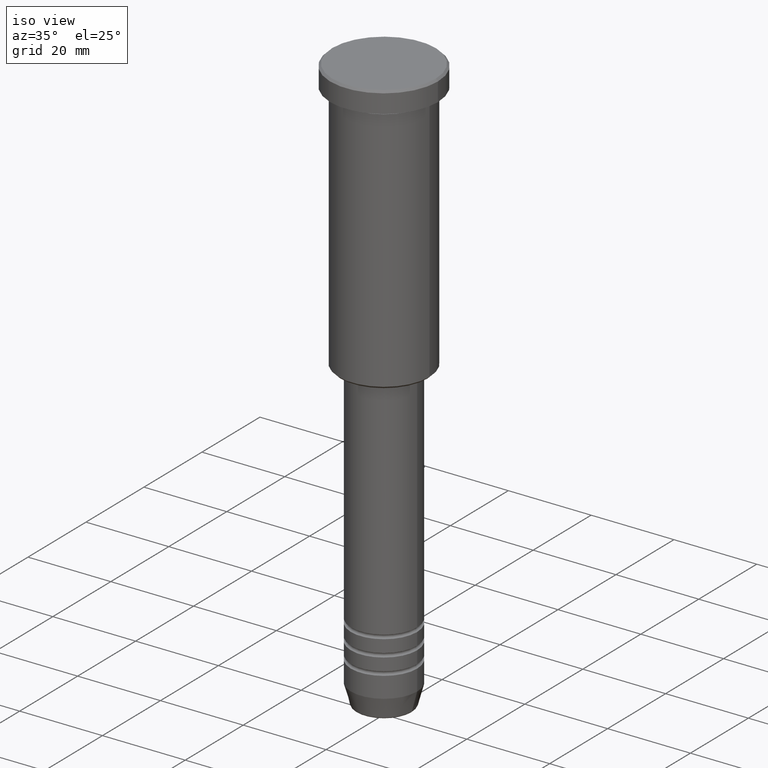
[diagram: clean part render]
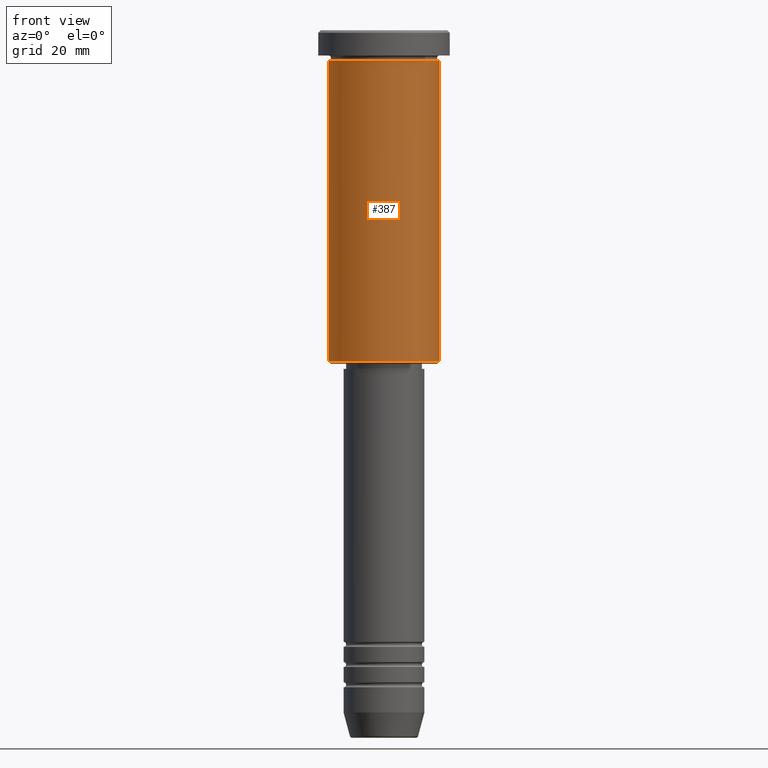
[diagram: tour spotlight — one face highlighted and labeled with its STEP entity id]
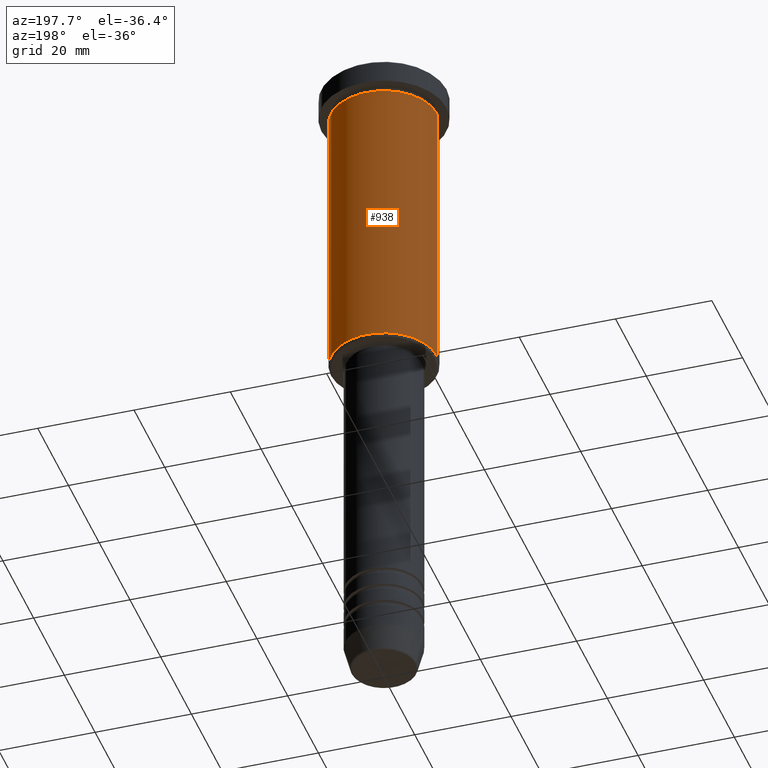
[diagram: tour spotlight — one face highlighted and labeled with its STEP entity id]
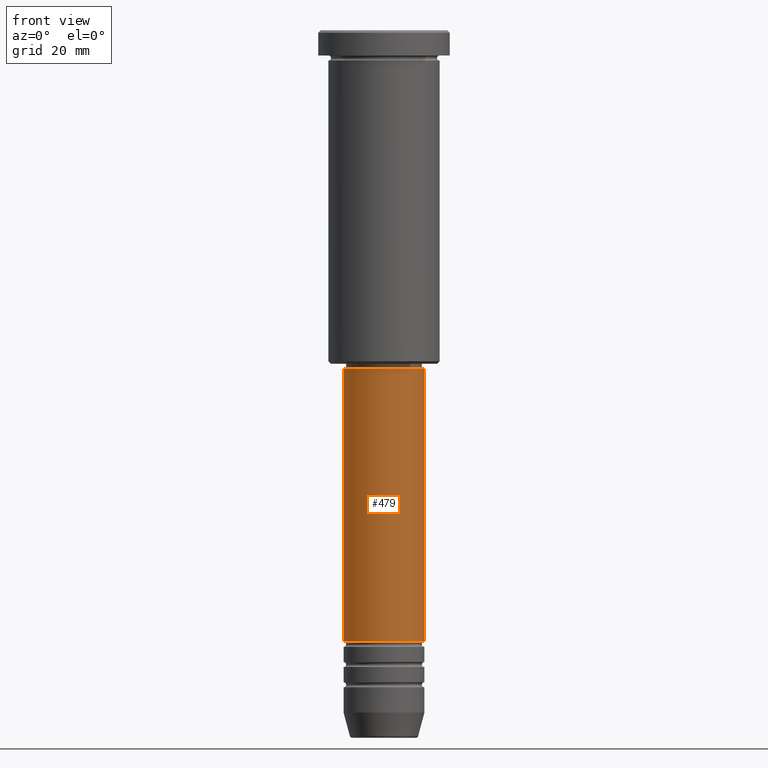
[diagram: tour spotlight — one face highlighted and labeled with its STEP entity id]
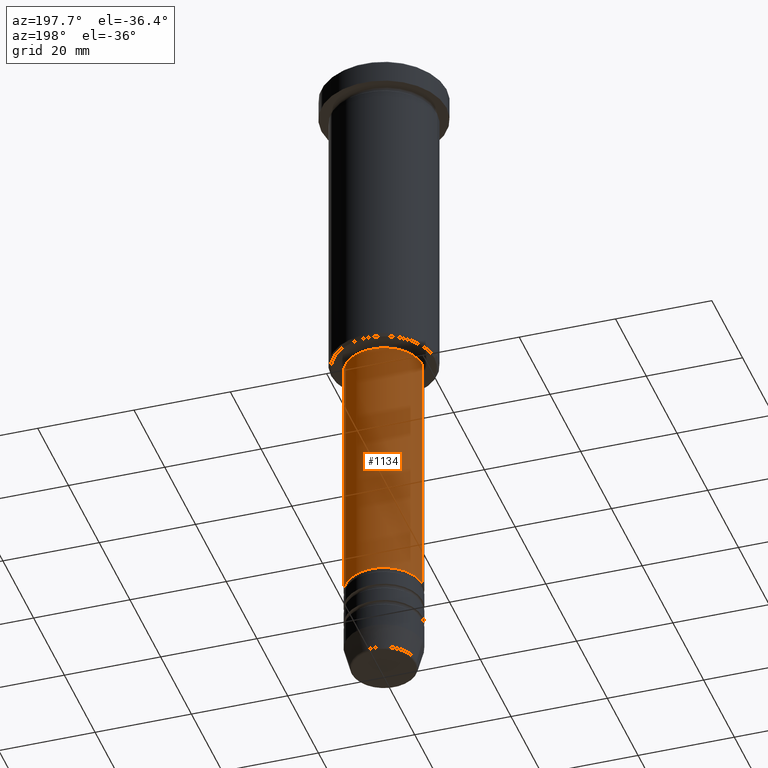
[diagram: tour spotlight — one face highlighted and labeled with its STEP entity id]
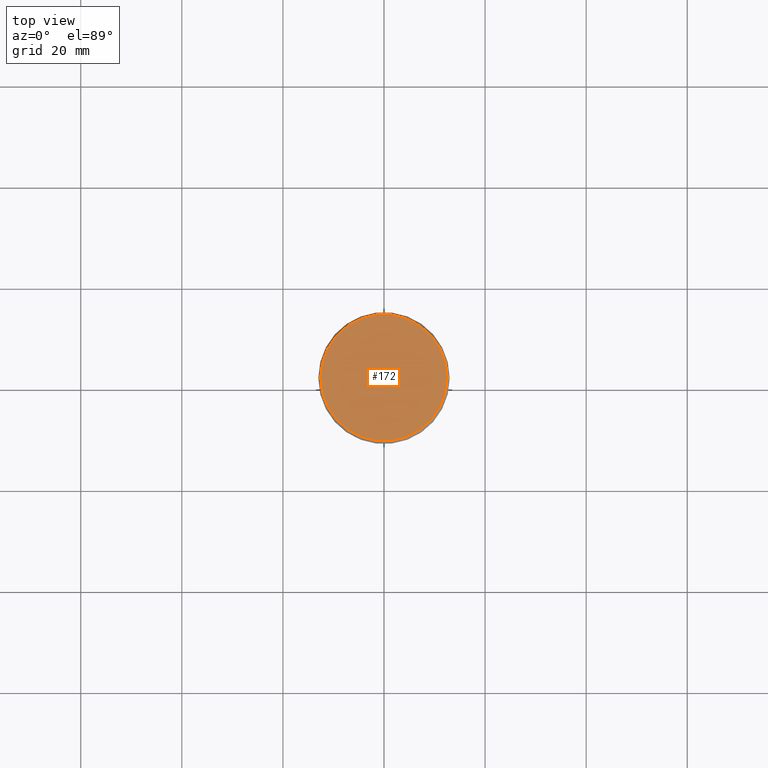
[diagram: tour spotlight — one face highlighted and labeled with its STEP entity id]
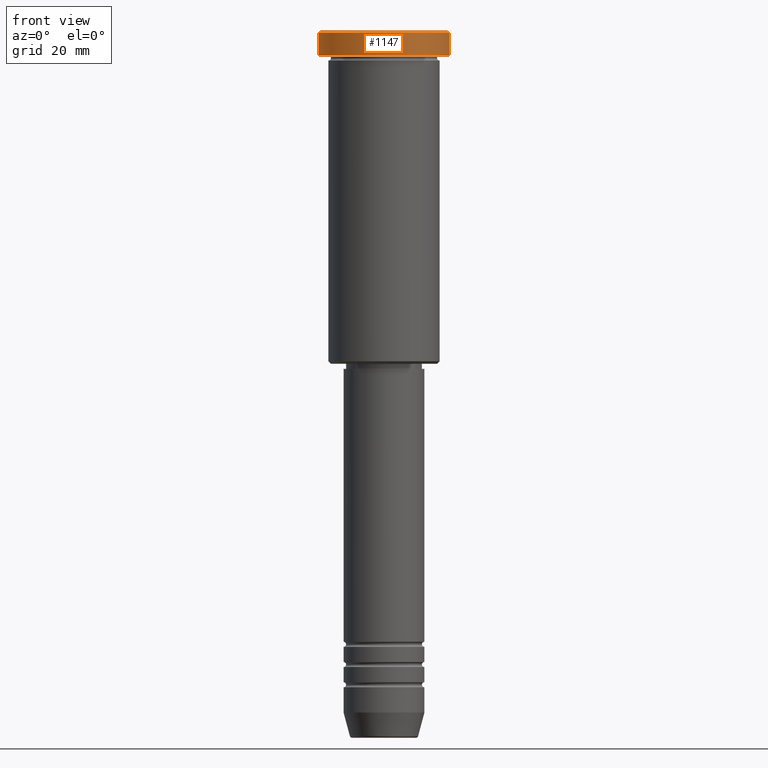
[diagram: tour spotlight — one face highlighted and labeled with its STEP entity id]
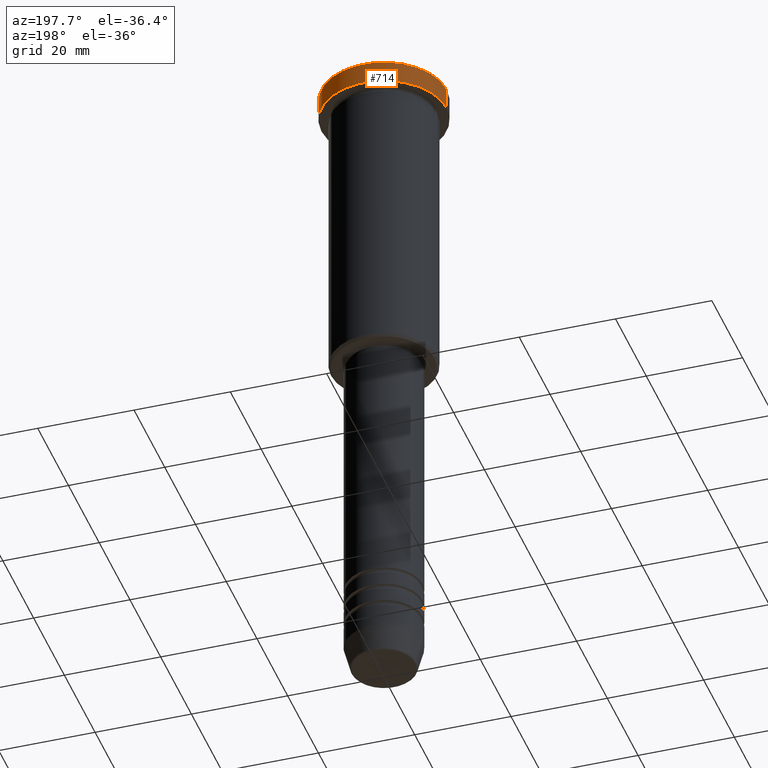
[diagram: tour spotlight — one face highlighted and labeled with its STEP entity id]
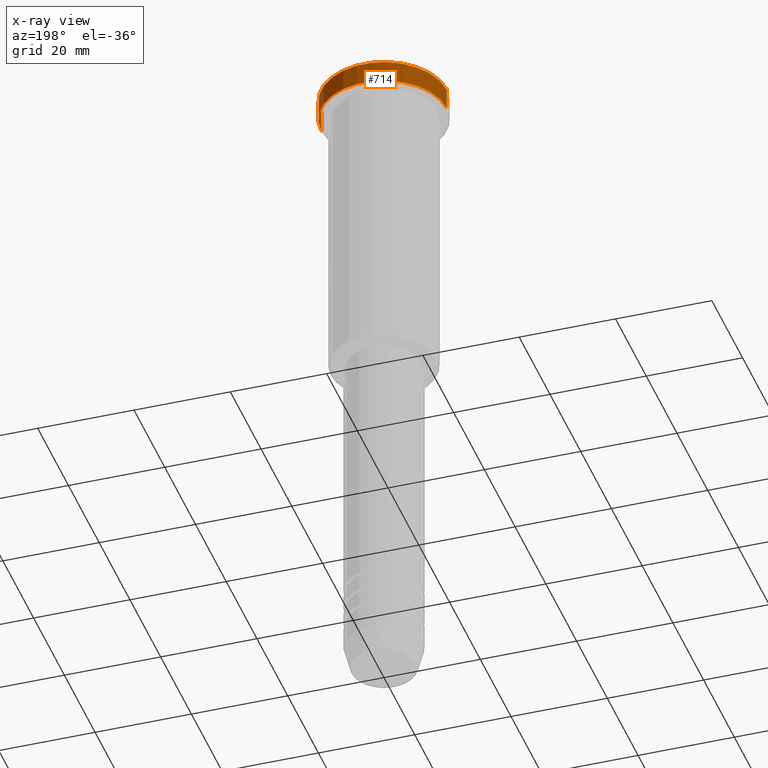
[diagram: x-ray of the same camera — body ghosted, this tour face saturated]
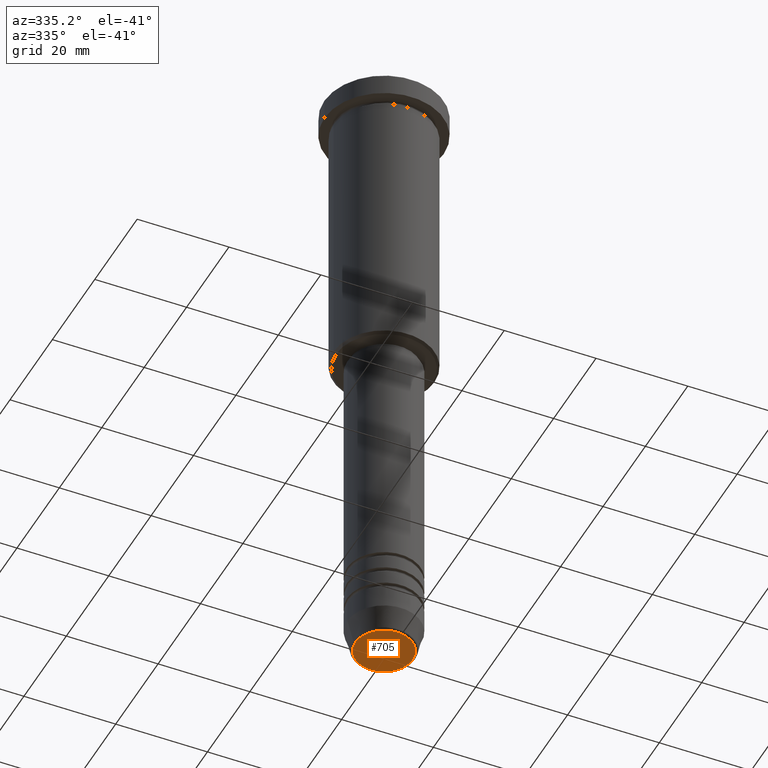
[diagram: tour spotlight — one face highlighted and labeled with its STEP entity id]
A machine part: a face-by-face anatomy tour. The part has 43 B-rep faces; the first image is the clean iso view, then the 8 largest visible faces are spotlighted one at a time (largest first), each with its STEP entity span.

Face 1 — front view, entity #387. In plain terms, the highlighted cylindrical surface (partial cylindrical patch) has radius 11 mm, axis along (-0, -0, 1).
Definition (entity closure, byte-faithful):
#33 = DIRECTION ( 'NONE',  ( -0.000000000000000000, -0.000000000000000000, 1.000000000000000000 ) ) ;
#97 = VECTOR ( 'NONE', #308, 1000.000000000000000 ) ;
#117 = CARTESIAN_POINT ( 'NONE',  ( 0.000000000000000000, 0.000000000000000000, 0.000000000000000000 ) ) ;
#128 = EDGE_CURVE ( 'NONE', #395, #780, #1127, .T. ) ;
#157 = AXIS2_PLACEMENT_3D ( 'NONE', #841, #597, #757 ) ;
#211 = EDGE_CURVE ( 'NONE', #395, #708, #285, .T. ) ;
#213 = CARTESIAN_POINT ( 'NONE',  ( -11.00000000000000000, 1.347111479062088405E-15, 0.000000000000000000 ) ) ;
#225 = EDGE_LOOP ( 'NONE', ( #1111, #803, #487, #1024 ) ) ;
#226 = DIRECTION ( 'NONE',  ( -0.000000000000000000, -0.000000000000000000, 1.000000000000000000 ) ) ;
#228 = CARTESIAN_POINT ( 'NONE',  ( -11.00000000000000000, 1.347111479062088405E-15, -65.49999999999994316 ) ) ;
#264 = CARTESIAN_POINT ( 'NONE',  ( 11.00000000000000000, 0.000000000000000000, -5.999999999999999112 ) ) ;
#285 = LINE ( 'NONE', #213, #97 ) ;
#308 = DIRECTION ( 'NONE',  ( -0.000000000000000000, -0.000000000000000000, 1.000000000000000000 ) ) ;
#309 = VERTEX_POINT ( 'NONE', #264 ) ;
#373 = CARTESIAN_POINT ( 'NONE',  ( -11.00000000000000000, 1.347111479062088405E-15, -5.999999999999999112 ) ) ;
#379 = CARTESIAN_POINT ( 'NONE',  ( 0.000000000000000000, 0.000000000000000000, -65.49999999999994316 ) ) ;
#387 = ADVANCED_FACE ( 'NONE', ( #944 ), #842, .T. ) ;
#388 = DIRECTION ( 'NONE',  ( 1.000000000000000000, 0.000000000000000000, 0.000000000000000000 ) ) ;
#395 = VERTEX_POINT ( 'NONE', #228 ) ;
#409 = CARTESIAN_POINT ( 'NONE',  ( 11.00000000000000000, 0.000000000000000000, -65.49999999999994316 ) ) ;
#477 = DIRECTION ( 'NONE',  ( -1.000000000000000000, 0.000000000000000000, 0.000000000000000000 ) ) ;
#487 = ORIENTED_EDGE ( 'NONE', *, *, #1164, .T. ) ;
#556 = CIRCLE ( 'NONE', #157, 11.00000000000000000 ) ;
#597 = DIRECTION ( 'NONE',  ( -0.000000000000000000, -0.000000000000000000, 1.000000000000000000 ) ) ;
#607 = CARTESIAN_POINT ( 'NONE',  ( 11.00000000000000000, 0.000000000000000000, 0.000000000000000000 ) ) ;
#708 = VERTEX_POINT ( 'NONE', #373 ) ;
#745 = DIRECTION ( 'NONE',  ( -0.000000000000000000, -0.000000000000000000, 1.000000000000000000 ) ) ;
#757 = DIRECTION ( 'NONE',  ( 1.000000000000000000, 0.000000000000000000, 0.000000000000000000 ) ) ;
#780 = VERTEX_POINT ( 'NONE', #409 ) ;
#803 = ORIENTED_EDGE ( 'NONE', *, *, #128, .T. ) ;
#841 = CARTESIAN_POINT ( 'NONE',  ( 0.000000000000000000, 0.000000000000000000, -5.999999999999999112 ) ) ;
#842 = CYLINDRICAL_SURFACE ( 'NONE', #869, 11.00000000000000000 ) ;
#869 = AXIS2_PLACEMENT_3D ( 'NONE', #117, #33, #388 ) ;
#944 = FACE_OUTER_BOUND ( 'NONE', #225, .T. ) ;
#976 = EDGE_CURVE ( 'NONE', #708, #309, #556, .T. ) ;
#999 = AXIS2_PLACEMENT_3D ( 'NONE', #379, #745, #477 ) ;
#1018 = VECTOR ( 'NONE', #226, 1000.000000000000000 ) ;
#1024 = ORIENTED_EDGE ( 'NONE', *, *, #976, .F. ) ;
#1051 = LINE ( 'NONE', #607, #1018 ) ;
#1111 = ORIENTED_EDGE ( 'NONE', *, *, #211, .F. ) ;
#1127 = CIRCLE ( 'NONE', #999, 11.00000000000000000 ) ;
#1164 = EDGE_CURVE ( 'NONE', #780, #309, #1051, .T. ) ;

Face 2 — auxiliary view, entity #938. In plain terms, the highlighted cylindrical surface (partial cylindrical patch) has radius 11 mm, axis along (-0, -0, 1).
Definition (entity closure, byte-faithful):
#24 = DIRECTION ( 'NONE',  ( -0.000000000000000000, -0.000000000000000000, 1.000000000000000000 ) ) ;
#26 = ORIENTED_EDGE ( 'NONE', *, *, #1164, .F. ) ;
#97 = VECTOR ( 'NONE', #308, 1000.000000000000000 ) ;
#111 = DIRECTION ( 'NONE',  ( -0.000000000000000000, -0.000000000000000000, 1.000000000000000000 ) ) ;
#130 = CARTESIAN_POINT ( 'NONE',  ( 0.000000000000000000, 0.000000000000000000, -65.49999999999994316 ) ) ;
#138 = ORIENTED_EDGE ( 'NONE', *, *, #508, .T. ) ;
#151 = EDGE_LOOP ( 'NONE', ( #138, #697, #542, #26 ) ) ;
#211 = EDGE_CURVE ( 'NONE', #395, #708, #285, .T. ) ;
#213 = CARTESIAN_POINT ( 'NONE',  ( -11.00000000000000000, 1.347111479062088405E-15, 0.000000000000000000 ) ) ;
#223 = DIRECTION ( 'NONE',  ( 1.000000000000000000, 0.000000000000000000, 0.000000000000000000 ) ) ;
#226 = DIRECTION ( 'NONE',  ( -0.000000000000000000, -0.000000000000000000, 1.000000000000000000 ) ) ;
#228 = CARTESIAN_POINT ( 'NONE',  ( -11.00000000000000000, 1.347111479062088405E-15, -65.49999999999994316 ) ) ;
#264 = CARTESIAN_POINT ( 'NONE',  ( 11.00000000000000000, 0.000000000000000000, -5.999999999999999112 ) ) ;
#285 = LINE ( 'NONE', #213, #97 ) ;
#308 = DIRECTION ( 'NONE',  ( -0.000000000000000000, -0.000000000000000000, 1.000000000000000000 ) ) ;
#309 = VERTEX_POINT ( 'NONE', #264 ) ;
#373 = CARTESIAN_POINT ( 'NONE',  ( -11.00000000000000000, 1.347111479062088405E-15, -5.999999999999999112 ) ) ;
#390 = DIRECTION ( 'NONE',  ( -1.000000000000000000, 0.000000000000000000, 0.000000000000000000 ) ) ;
#395 = VERTEX_POINT ( 'NONE', #228 ) ;
#409 = CARTESIAN_POINT ( 'NONE',  ( 11.00000000000000000, 0.000000000000000000, -65.49999999999994316 ) ) ;
#422 = AXIS2_PLACEMENT_3D ( 'NONE', #662, #111, #223 ) ;
#453 = EDGE_CURVE ( 'NONE', #309, #708, #929, .T. ) ;
#504 = DIRECTION ( 'NONE',  ( -0.000000000000000000, -0.000000000000000000, 1.000000000000000000 ) ) ;
#508 = EDGE_CURVE ( 'NONE', #780, #395, #741, .T. ) ;
#518 = AXIS2_PLACEMENT_3D ( 'NONE', #130, #24, #390 ) ;
#542 = ORIENTED_EDGE ( 'NONE', *, *, #453, .F. ) ;
#607 = CARTESIAN_POINT ( 'NONE',  ( 11.00000000000000000, 0.000000000000000000, 0.000000000000000000 ) ) ;
#662 = CARTESIAN_POINT ( 'NONE',  ( 0.000000000000000000, 0.000000000000000000, -5.999999999999999112 ) ) ;
#697 = ORIENTED_EDGE ( 'NONE', *, *, #211, .T. ) ;
#699 = CYLINDRICAL_SURFACE ( 'NONE', #1072, 11.00000000000000000 ) ;
#708 = VERTEX_POINT ( 'NONE', #373 ) ;
#741 = CIRCLE ( 'NONE', #518, 11.00000000000000000 ) ;
#780 = VERTEX_POINT ( 'NONE', #409 ) ;
#897 = DIRECTION ( 'NONE',  ( 1.000000000000000000, 0.000000000000000000, 0.000000000000000000 ) ) ;
#929 = CIRCLE ( 'NONE', #422, 11.00000000000000000 ) ;
#938 = ADVANCED_FACE ( 'NONE', ( #1117 ), #699, .T. ) ;
#1018 = VECTOR ( 'NONE', #226, 1000.000000000000000 ) ;
#1051 = LINE ( 'NONE', #607, #1018 ) ;
#1053 = CARTESIAN_POINT ( 'NONE',  ( 0.000000000000000000, 0.000000000000000000, 0.000000000000000000 ) ) ;
#1072 = AXIS2_PLACEMENT_3D ( 'NONE', #1053, #504, #897 ) ;
#1117 = FACE_OUTER_BOUND ( 'NONE', #151, .T. ) ;
#1164 = EDGE_CURVE ( 'NONE', #780, #309, #1051, .T. ) ;

Face 3 — front view, entity #479. In plain terms, the highlighted cylindrical surface (partial cylindrical patch) has radius 8 mm, axis along (-0, -0, 1).
Definition (entity closure, byte-faithful):
#25 = AXIS2_PLACEMENT_3D ( 'NONE', #168, #736, #540 ) ;
#135 = DIRECTION ( 'NONE',  ( -0.000000000000000000, -0.000000000000000000, 1.000000000000000000 ) ) ;
#149 = ORIENTED_EDGE ( 'NONE', *, *, #850, .F. ) ;
#168 = CARTESIAN_POINT ( 'NONE',  ( 0.000000000000000000, 0.000000000000000000, -67.00000000000002842 ) ) ;
#189 = EDGE_LOOP ( 'NONE', ( #149, #435, #997, #220 ) ) ;
#220 = ORIENTED_EDGE ( 'NONE', *, *, #548, .F. ) ;
#222 = CARTESIAN_POINT ( 'NONE',  ( 8.000000000000000000, 0.000000000000000000, 0.000000000000000000 ) ) ;
#230 = EDGE_CURVE ( 'NONE', #743, #520, #776, .T. ) ;
#423 = LINE ( 'NONE', #903, #778 ) ;
#435 = ORIENTED_EDGE ( 'NONE', *, *, #230, .T. ) ;
#446 = CARTESIAN_POINT ( 'NONE',  ( -8.000000000000000000, 9.797174393178825657E-16, -121.0000000000000000 ) ) ;
#448 = CARTESIAN_POINT ( 'NONE',  ( -8.000000000000000000, 9.797174393178825657E-16, -67.00000000000002842 ) ) ;
#479 = ADVANCED_FACE ( 'NONE', ( #594 ), #860, .T. ) ;
#495 = DIRECTION ( 'NONE',  ( -0.000000000000000000, -0.000000000000000000, 1.000000000000000000 ) ) ;
#520 = VERTEX_POINT ( 'NONE', #945 ) ;
#537 = CIRCLE ( 'NONE', #25, 8.000000000000000000 ) ;
#540 = DIRECTION ( 'NONE',  ( 1.000000000000000000, 0.000000000000000000, 0.000000000000000000 ) ) ;
#548 = EDGE_CURVE ( 'NONE', #916, #631, #537, .T. ) ;
#559 = AXIS2_PLACEMENT_3D ( 'NONE', #864, #779, #1125 ) ;
#569 = CARTESIAN_POINT ( 'NONE',  ( 8.000000000000000000, 0.000000000000000000, -67.00000000000002842 ) ) ;
#580 = AXIS2_PLACEMENT_3D ( 'NONE', #865, #957, #707 ) ;
#594 = FACE_OUTER_BOUND ( 'NONE', #189, .T. ) ;
#631 = VERTEX_POINT ( 'NONE', #569 ) ;
#642 = EDGE_CURVE ( 'NONE', #520, #631, #686, .T. ) ;
#686 = LINE ( 'NONE', #222, #1152 ) ;
#707 = DIRECTION ( 'NONE',  ( 1.000000000000000000, 0.000000000000000000, 0.000000000000000000 ) ) ;
#736 = DIRECTION ( 'NONE',  ( -0.000000000000000000, -0.000000000000000000, 1.000000000000000000 ) ) ;
#743 = VERTEX_POINT ( 'NONE', #446 ) ;
#776 = CIRCLE ( 'NONE', #580, 8.000000000000000000 ) ;
#778 = VECTOR ( 'NONE', #135, 1000.000000000000000 ) ;
#779 = DIRECTION ( 'NONE',  ( -0.000000000000000000, -0.000000000000000000, 1.000000000000000000 ) ) ;
#850 = EDGE_CURVE ( 'NONE', #743, #916, #423, .T. ) ;
#860 = CYLINDRICAL_SURFACE ( 'NONE', #559, 8.000000000000000000 ) ;
#864 = CARTESIAN_POINT ( 'NONE',  ( 0.000000000000000000, 0.000000000000000000, 0.000000000000000000 ) ) ;
#865 = CARTESIAN_POINT ( 'NONE',  ( 0.000000000000000000, 0.000000000000000000, -121.0000000000000000 ) ) ;
#903 = CARTESIAN_POINT ( 'NONE',  ( -8.000000000000000000, 9.797174393178825657E-16, 0.000000000000000000 ) ) ;
#916 = VERTEX_POINT ( 'NONE', #448 ) ;
#945 = CARTESIAN_POINT ( 'NONE',  ( 8.000000000000000000, 0.000000000000000000, -121.0000000000000000 ) ) ;
#957 = DIRECTION ( 'NONE',  ( -0.000000000000000000, -0.000000000000000000, 1.000000000000000000 ) ) ;
#997 = ORIENTED_EDGE ( 'NONE', *, *, #642, .T. ) ;
#1125 = DIRECTION ( 'NONE',  ( 1.000000000000000000, 0.000000000000000000, 0.000000000000000000 ) ) ;
#1152 = VECTOR ( 'NONE', #495, 1000.000000000000000 ) ;

Face 4 — auxiliary view, entity #1134. In plain terms, the highlighted cylindrical surface (partial cylindrical patch) has radius 8 mm, axis along (-0, -0, 1).
Definition (entity closure, byte-faithful):
#16 = CYLINDRICAL_SURFACE ( 'NONE', #701, 8.000000000000000000 ) ;
#135 = DIRECTION ( 'NONE',  ( -0.000000000000000000, -0.000000000000000000, 1.000000000000000000 ) ) ;
#145 = AXIS2_PLACEMENT_3D ( 'NONE', #1052, #602, #852 ) ;
#165 = EDGE_LOOP ( 'NONE', ( #503, #370, #725, #201 ) ) ;
#201 = ORIENTED_EDGE ( 'NONE', *, *, #642, .F. ) ;
#206 = FACE_OUTER_BOUND ( 'NONE', #165, .T. ) ;
#222 = CARTESIAN_POINT ( 'NONE',  ( 8.000000000000000000, 0.000000000000000000, 0.000000000000000000 ) ) ;
#224 = DIRECTION ( 'NONE',  ( 1.000000000000000000, 0.000000000000000000, 0.000000000000000000 ) ) ;
#247 = EDGE_CURVE ( 'NONE', #520, #743, #806, .T. ) ;
#370 = ORIENTED_EDGE ( 'NONE', *, *, #850, .T. ) ;
#423 = LINE ( 'NONE', #903, #778 ) ;
#446 = CARTESIAN_POINT ( 'NONE',  ( -8.000000000000000000, 9.797174393178825657E-16, -121.0000000000000000 ) ) ;
#448 = CARTESIAN_POINT ( 'NONE',  ( -8.000000000000000000, 9.797174393178825657E-16, -67.00000000000002842 ) ) ;
#495 = DIRECTION ( 'NONE',  ( -0.000000000000000000, -0.000000000000000000, 1.000000000000000000 ) ) ;
#502 = DIRECTION ( 'NONE',  ( 1.000000000000000000, 0.000000000000000000, 0.000000000000000000 ) ) ;
#503 = ORIENTED_EDGE ( 'NONE', *, *, #247, .T. ) ;
#520 = VERTEX_POINT ( 'NONE', #945 ) ;
#569 = CARTESIAN_POINT ( 'NONE',  ( 8.000000000000000000, 0.000000000000000000, -67.00000000000002842 ) ) ;
#584 = DIRECTION ( 'NONE',  ( -0.000000000000000000, -0.000000000000000000, 1.000000000000000000 ) ) ;
#602 = DIRECTION ( 'NONE',  ( -0.000000000000000000, -0.000000000000000000, 1.000000000000000000 ) ) ;
#631 = VERTEX_POINT ( 'NONE', #569 ) ;
#642 = EDGE_CURVE ( 'NONE', #520, #631, #686, .T. ) ;
#686 = LINE ( 'NONE', #222, #1152 ) ;
#701 = AXIS2_PLACEMENT_3D ( 'NONE', #948, #956, #224 ) ;
#725 = ORIENTED_EDGE ( 'NONE', *, *, #874, .F. ) ;
#743 = VERTEX_POINT ( 'NONE', #446 ) ;
#778 = VECTOR ( 'NONE', #135, 1000.000000000000000 ) ;
#787 = AXIS2_PLACEMENT_3D ( 'NONE', #1154, #584, #502 ) ;
#806 = CIRCLE ( 'NONE', #787, 8.000000000000000000 ) ;
#850 = EDGE_CURVE ( 'NONE', #743, #916, #423, .T. ) ;
#852 = DIRECTION ( 'NONE',  ( 1.000000000000000000, 0.000000000000000000, 0.000000000000000000 ) ) ;
#874 = EDGE_CURVE ( 'NONE', #631, #916, #1003, .T. ) ;
#903 = CARTESIAN_POINT ( 'NONE',  ( -8.000000000000000000, 9.797174393178825657E-16, 0.000000000000000000 ) ) ;
#916 = VERTEX_POINT ( 'NONE', #448 ) ;
#945 = CARTESIAN_POINT ( 'NONE',  ( 8.000000000000000000, 0.000000000000000000, -121.0000000000000000 ) ) ;
#948 = CARTESIAN_POINT ( 'NONE',  ( 0.000000000000000000, 0.000000000000000000, 0.000000000000000000 ) ) ;
#956 = DIRECTION ( 'NONE',  ( -0.000000000000000000, -0.000000000000000000, 1.000000000000000000 ) ) ;
#1003 = CIRCLE ( 'NONE', #145, 8.000000000000000000 ) ;
#1052 = CARTESIAN_POINT ( 'NONE',  ( 0.000000000000000000, 0.000000000000000000, -67.00000000000002842 ) ) ;
#1134 = ADVANCED_FACE ( 'NONE', ( #206 ), #16, .T. ) ;
#1152 = VECTOR ( 'NONE', #495, 1000.000000000000000 ) ;
#1154 = CARTESIAN_POINT ( 'NONE',  ( 0.000000000000000000, 0.000000000000000000, -121.0000000000000000 ) ) ;

Face 5 — top view, entity #172. In plain terms, the highlighted planar face has unit normal (0, -0, 1).
Definition (entity closure, byte-faithful):
#27 = CIRCLE ( 'NONE', #463, 12.50000000000001066 ) ;
#67 = ORIENTED_EDGE ( 'NONE', *, *, #731, .T. ) ;
#172 = ADVANCED_FACE ( 'NONE', ( #665 ), #1027, .T. ) ;
#218 = CARTESIAN_POINT ( 'NONE',  ( 12.50000000000001066, 1.561424668912876097E-15, 0.000000000000000000 ) ) ;
#259 = CARTESIAN_POINT ( 'NONE',  ( -12.50000000000001066, 0.000000000000000000, 0.000000000000000000 ) ) ;
#272 = DIRECTION ( 'NONE',  ( 1.000000000000000000, 0.000000000000000000, 0.000000000000000000 ) ) ;
#317 = CARTESIAN_POINT ( 'NONE',  ( 0.000000000000000000, 0.000000000000000000, 0.000000000000000000 ) ) ;
#329 = DIRECTION ( 'NONE',  ( -0.000000000000000000, -0.000000000000000000, 1.000000000000000000 ) ) ;
#350 = CIRCLE ( 'NONE', #1022, 12.50000000000001066 ) ;
#376 = CARTESIAN_POINT ( 'NONE',  ( 0.000000000000000000, 0.000000000000000000, 0.000000000000000000 ) ) ;
#463 = AXIS2_PLACEMENT_3D ( 'NONE', #881, #329, #272 ) ;
#485 = DIRECTION ( 'NONE',  ( 0.000000000000000000, -0.000000000000000000, 1.000000000000000000 ) ) ;
#636 = AXIS2_PLACEMENT_3D ( 'NONE', #376, #485, #836 ) ;
#660 = EDGE_CURVE ( 'NONE', #919, #816, #350, .T. ) ;
#665 = FACE_OUTER_BOUND ( 'NONE', #690, .T. ) ;
#690 = EDGE_LOOP ( 'NONE', ( #67, #1071 ) ) ;
#719 = DIRECTION ( 'NONE',  ( 1.000000000000000000, 0.000000000000000000, 0.000000000000000000 ) ) ;
#731 = EDGE_CURVE ( 'NONE', #816, #919, #27, .T. ) ;
#816 = VERTEX_POINT ( 'NONE', #259 ) ;
#836 = DIRECTION ( 'NONE',  ( 1.000000000000000000, 0.000000000000000000, 0.000000000000000000 ) ) ;
#881 = CARTESIAN_POINT ( 'NONE',  ( 0.000000000000000000, 0.000000000000000000, 0.000000000000000000 ) ) ;
#919 = VERTEX_POINT ( 'NONE', #218 ) ;
#969 = DIRECTION ( 'NONE',  ( -0.000000000000000000, -0.000000000000000000, 1.000000000000000000 ) ) ;
#1022 = AXIS2_PLACEMENT_3D ( 'NONE', #317, #969, #719 ) ;
#1027 = PLANE ( 'NONE',  #636 ) ;
#1071 = ORIENTED_EDGE ( 'NONE', *, *, #660, .T. ) ;

Face 6 — front view, entity #1147. In plain terms, the highlighted cylindrical surface (partial cylindrical patch) has radius 13 mm, axis along (-0, -0, 1).
Definition (entity closure, byte-faithful):
#69 = CARTESIAN_POINT ( 'NONE',  ( 13.00000000000000000, 0.000000000000000000, 0.000000000000000000 ) ) ;
#106 = DIRECTION ( 'NONE',  ( 0.000000000000000000, 0.000000000000000000, -1.000000000000000000 ) ) ;
#136 = DIRECTION ( 'NONE',  ( 1.000000000000000000, 0.000000000000000000, 0.000000000000000000 ) ) ;
#173 = VERTEX_POINT ( 'NONE', #754 ) ;
#192 = DIRECTION ( 'NONE',  ( -0.000000000000000000, -0.000000000000000000, 1.000000000000000000 ) ) ;
#194 = CIRCLE ( 'NONE', #678, 13.00000000000000000 ) ;
#212 = EDGE_CURVE ( 'NONE', #173, #937, #551, .T. ) ;
#242 = DIRECTION ( 'NONE',  ( 1.000000000000000000, 0.000000000000000000, 0.000000000000000000 ) ) ;
#319 = DIRECTION ( 'NONE',  ( -0.000000000000000000, -0.000000000000000000, 1.000000000000000000 ) ) ;
#324 = CARTESIAN_POINT ( 'NONE',  ( -13.00000000000000000, 1.592040838891559095E-15, -0.4999999999999935052 ) ) ;
#333 = CARTESIAN_POINT ( 'NONE',  ( 0.000000000000000000, 0.000000000000000000, 0.000000000000000000 ) ) ;
#337 = CARTESIAN_POINT ( 'NONE',  ( 13.00000000000000000, 0.000000000000000000, -0.4999999999999935052 ) ) ;
#401 = DIRECTION ( 'NONE',  ( 1.000000000000000000, 0.000000000000000000, 0.000000000000000000 ) ) ;
#445 = DIRECTION ( 'NONE',  ( -0.000000000000000000, -0.000000000000000000, 1.000000000000000000 ) ) ;
#476 = ORIENTED_EDGE ( 'NONE', *, *, #212, .F. ) ;
#517 = VECTOR ( 'NONE', #192, 1000.000000000000000 ) ;
#551 = LINE ( 'NONE', #657, #517 ) ;
#583 = ORIENTED_EDGE ( 'NONE', *, *, #923, .T. ) ;
#592 = ORIENTED_EDGE ( 'NONE', *, *, #1116, .T. ) ;
#596 = CYLINDRICAL_SURFACE ( 'NONE', #775, 13.00000000000000000 ) ;
#635 = AXIS2_PLACEMENT_3D ( 'NONE', #946, #319, #136 ) ;
#657 = CARTESIAN_POINT ( 'NONE',  ( -13.00000000000000000, 1.592040838891559095E-15, 0.000000000000000000 ) ) ;
#678 = AXIS2_PLACEMENT_3D ( 'NONE', #954, #106, #401 ) ;
#726 = VERTEX_POINT ( 'NONE', #863 ) ;
#754 = CARTESIAN_POINT ( 'NONE',  ( -13.00000000000000000, 1.592040838891559095E-15, -5.000000000000000000 ) ) ;
#773 = FACE_OUTER_BOUND ( 'NONE', #1155, .T. ) ;
#775 = AXIS2_PLACEMENT_3D ( 'NONE', #333, #1064, #242 ) ;
#795 = EDGE_CURVE ( 'NONE', #726, #814, #989, .T. ) ;
#814 = VERTEX_POINT ( 'NONE', #337 ) ;
#863 = CARTESIAN_POINT ( 'NONE',  ( 13.00000000000000000, 0.000000000000000000, -5.000000000000000000 ) ) ;
#870 = VECTOR ( 'NONE', #445, 1000.000000000000000 ) ;
#923 = EDGE_CURVE ( 'NONE', #173, #726, #1133, .T. ) ;
#937 = VERTEX_POINT ( 'NONE', #324 ) ;
#946 = CARTESIAN_POINT ( 'NONE',  ( 0.000000000000000000, 0.000000000000000000, -5.000000000000000000 ) ) ;
#954 = CARTESIAN_POINT ( 'NONE',  ( 0.000000000000000000, 0.000000000000000000, -0.4999999999999935052 ) ) ;
#989 = LINE ( 'NONE', #69, #870 ) ;
#1064 = DIRECTION ( 'NONE',  ( -0.000000000000000000, -0.000000000000000000, 1.000000000000000000 ) ) ;
#1087 = ORIENTED_EDGE ( 'NONE', *, *, #795, .T. ) ;
#1116 = EDGE_CURVE ( 'NONE', #814, #937, #194, .T. ) ;
#1133 = CIRCLE ( 'NONE', #635, 13.00000000000000000 ) ;
#1147 = ADVANCED_FACE ( 'NONE', ( #773 ), #596, .T. ) ;
#1155 = EDGE_LOOP ( 'NONE', ( #476, #583, #1087, #592 ) ) ;

Face 7 — auxiliary view, entity #714. An x-ray twin of the same camera follows (body ghosted, this face saturated) — the face is partly hidden behind the body. In plain terms, the highlighted cylindrical surface (partial cylindrical patch) has radius 13 mm, axis along (-0, -0, 1).
Definition (entity closure, byte-faithful):
#8 = DIRECTION ( 'NONE',  ( 1.000000000000000000, 0.000000000000000000, 0.000000000000000000 ) ) ;
#69 = CARTESIAN_POINT ( 'NONE',  ( 13.00000000000000000, 0.000000000000000000, 0.000000000000000000 ) ) ;
#78 = AXIS2_PLACEMENT_3D ( 'NONE', #1153, #1041, #244 ) ;
#125 = EDGE_CURVE ( 'NONE', #726, #173, #459, .T. ) ;
#133 = FACE_OUTER_BOUND ( 'NONE', #934, .T. ) ;
#173 = VERTEX_POINT ( 'NONE', #754 ) ;
#174 = AXIS2_PLACEMENT_3D ( 'NONE', #792, #965, #412 ) ;
#192 = DIRECTION ( 'NONE',  ( -0.000000000000000000, -0.000000000000000000, 1.000000000000000000 ) ) ;
#210 = ORIENTED_EDGE ( 'NONE', *, *, #125, .T. ) ;
#212 = EDGE_CURVE ( 'NONE', #173, #937, #551, .T. ) ;
#244 = DIRECTION ( 'NONE',  ( 1.000000000000000000, 0.000000000000000000, 0.000000000000000000 ) ) ;
#324 = CARTESIAN_POINT ( 'NONE',  ( -13.00000000000000000, 1.592040838891559095E-15, -0.4999999999999935052 ) ) ;
#337 = CARTESIAN_POINT ( 'NONE',  ( 13.00000000000000000, 0.000000000000000000, -0.4999999999999935052 ) ) ;
#354 = ORIENTED_EDGE ( 'NONE', *, *, #1010, .T. ) ;
#382 = AXIS2_PLACEMENT_3D ( 'NONE', #761, #676, #8 ) ;
#412 = DIRECTION ( 'NONE',  ( 1.000000000000000000, 0.000000000000000000, 0.000000000000000000 ) ) ;
#445 = DIRECTION ( 'NONE',  ( -0.000000000000000000, -0.000000000000000000, 1.000000000000000000 ) ) ;
#459 = CIRCLE ( 'NONE', #382, 13.00000000000000000 ) ;
#517 = VECTOR ( 'NONE', #192, 1000.000000000000000 ) ;
#551 = LINE ( 'NONE', #657, #517 ) ;
#654 = ORIENTED_EDGE ( 'NONE', *, *, #795, .F. ) ;
#657 = CARTESIAN_POINT ( 'NONE',  ( -13.00000000000000000, 1.592040838891559095E-15, 0.000000000000000000 ) ) ;
#676 = DIRECTION ( 'NONE',  ( -0.000000000000000000, -0.000000000000000000, 1.000000000000000000 ) ) ;
#679 = CYLINDRICAL_SURFACE ( 'NONE', #78, 13.00000000000000000 ) ;
#714 = ADVANCED_FACE ( 'NONE', ( #133 ), #679, .T. ) ;
#726 = VERTEX_POINT ( 'NONE', #863 ) ;
#754 = CARTESIAN_POINT ( 'NONE',  ( -13.00000000000000000, 1.592040838891559095E-15, -5.000000000000000000 ) ) ;
#761 = CARTESIAN_POINT ( 'NONE',  ( 0.000000000000000000, 0.000000000000000000, -5.000000000000000000 ) ) ;
#792 = CARTESIAN_POINT ( 'NONE',  ( 0.000000000000000000, 0.000000000000000000, -0.4999999999999935052 ) ) ;
#795 = EDGE_CURVE ( 'NONE', #726, #814, #989, .T. ) ;
#814 = VERTEX_POINT ( 'NONE', #337 ) ;
#863 = CARTESIAN_POINT ( 'NONE',  ( 13.00000000000000000, 0.000000000000000000, -5.000000000000000000 ) ) ;
#870 = VECTOR ( 'NONE', #445, 1000.000000000000000 ) ;
#934 = EDGE_LOOP ( 'NONE', ( #210, #1124, #354, #654 ) ) ;
#937 = VERTEX_POINT ( 'NONE', #324 ) ;
#965 = DIRECTION ( 'NONE',  ( 0.000000000000000000, 0.000000000000000000, -1.000000000000000000 ) ) ;
#989 = LINE ( 'NONE', #69, #870 ) ;
#1010 = EDGE_CURVE ( 'NONE', #937, #814, #1148, .T. ) ;
#1041 = DIRECTION ( 'NONE',  ( -0.000000000000000000, -0.000000000000000000, 1.000000000000000000 ) ) ;
#1124 = ORIENTED_EDGE ( 'NONE', *, *, #212, .T. ) ;
#1148 = CIRCLE ( 'NONE', #174, 13.00000000000000000 ) ;
#1153 = CARTESIAN_POINT ( 'NONE',  ( 0.000000000000000000, 0.000000000000000000, 0.000000000000000000 ) ) ;

Face 8 — auxiliary view, entity #705. In plain terms, the highlighted planar face has unit normal (0, -0, 1).
Definition (entity closure, byte-faithful):
#9 = DIRECTION ( 'NONE',  ( 0.000000000000000000, -0.000000000000000000, 1.000000000000000000 ) ) ;
#38 = CARTESIAN_POINT ( 'NONE',  ( 0.000000000000000000, 0.000000000000000000, -140.0000000000000000 ) ) ;
#95 = PLANE ( 'NONE',  #425 ) ;
#105 = ORIENTED_EDGE ( 'NONE', *, *, #718, .T. ) ;
#200 = AXIS2_PLACEMENT_3D ( 'NONE', #38, #585, #488 ) ;
#235 = AXIS2_PLACEMENT_3D ( 'NONE', #1049, #323, #500 ) ;
#323 = DIRECTION ( 'NONE',  ( 0.000000000000000000, 0.000000000000000000, -1.000000000000000000 ) ) ;
#425 = AXIS2_PLACEMENT_3D ( 'NONE', #829, #9, #747 ) ;
#466 = CARTESIAN_POINT ( 'NONE',  ( 6.276590543854903892, 0.000000000000000000, -140.0000000000000000 ) ) ;
#488 = DIRECTION ( 'NONE',  ( 1.000000000000000000, 0.000000000000000000, 0.000000000000000000 ) ) ;
#500 = DIRECTION ( 'NONE',  ( 1.000000000000000000, 0.000000000000000000, 0.000000000000000000 ) ) ;
#501 = CIRCLE ( 'NONE', #235, 6.276590543854903892 ) ;
#552 = FACE_OUTER_BOUND ( 'NONE', #606, .T. ) ;
#585 = DIRECTION ( 'NONE',  ( 0.000000000000000000, 0.000000000000000000, -1.000000000000000000 ) ) ;
#606 = EDGE_LOOP ( 'NONE', ( #612, #105 ) ) ;
#612 = ORIENTED_EDGE ( 'NONE', *, *, #851, .T. ) ;
#705 = ADVANCED_FACE ( 'NONE', ( #552 ), #95, .F. ) ;
#718 = EDGE_CURVE ( 'NONE', #911, #913, #848, .T. ) ;
#747 = DIRECTION ( 'NONE',  ( 1.000000000000000000, 0.000000000000000000, 0.000000000000000000 ) ) ;
#829 = CARTESIAN_POINT ( 'NONE',  ( 0.000000000000000000, 0.000000000000000000, -140.0000000000000000 ) ) ;
#848 = CIRCLE ( 'NONE', #200, 6.276590543854903892 ) ;
#851 = EDGE_CURVE ( 'NONE', #913, #911, #501, .T. ) ;
#888 = CARTESIAN_POINT ( 'NONE',  ( -6.276590543854903892, 7.982336011935122327E-16, -140.0000000000000000 ) ) ;
#911 = VERTEX_POINT ( 'NONE', #888 ) ;
#913 = VERTEX_POINT ( 'NONE', #466 ) ;
#1049 = CARTESIAN_POINT ( 'NONE',  ( 0.000000000000000000, 0.000000000000000000, -140.0000000000000000 ) ) ;